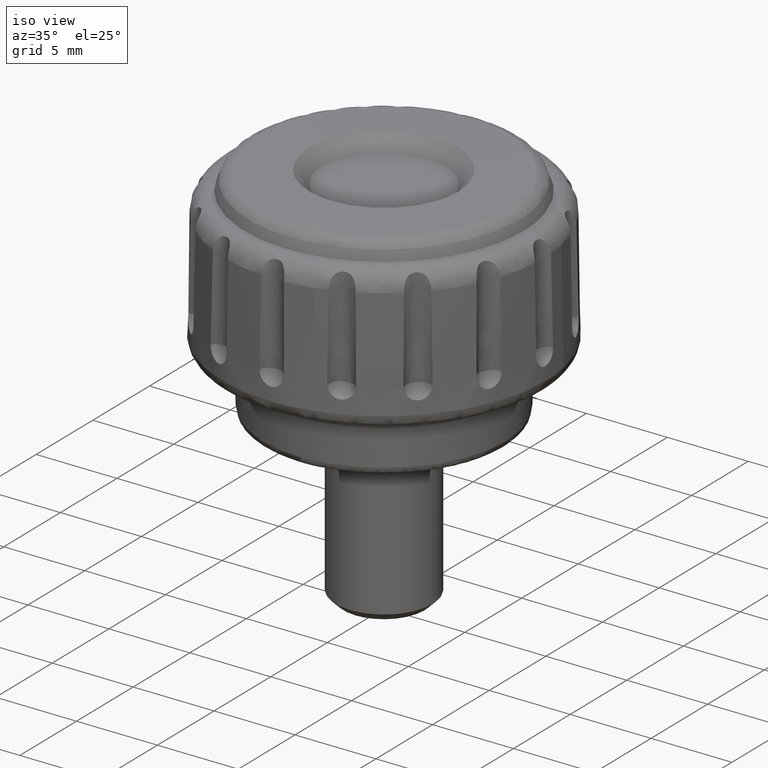
[diagram: clean part render]
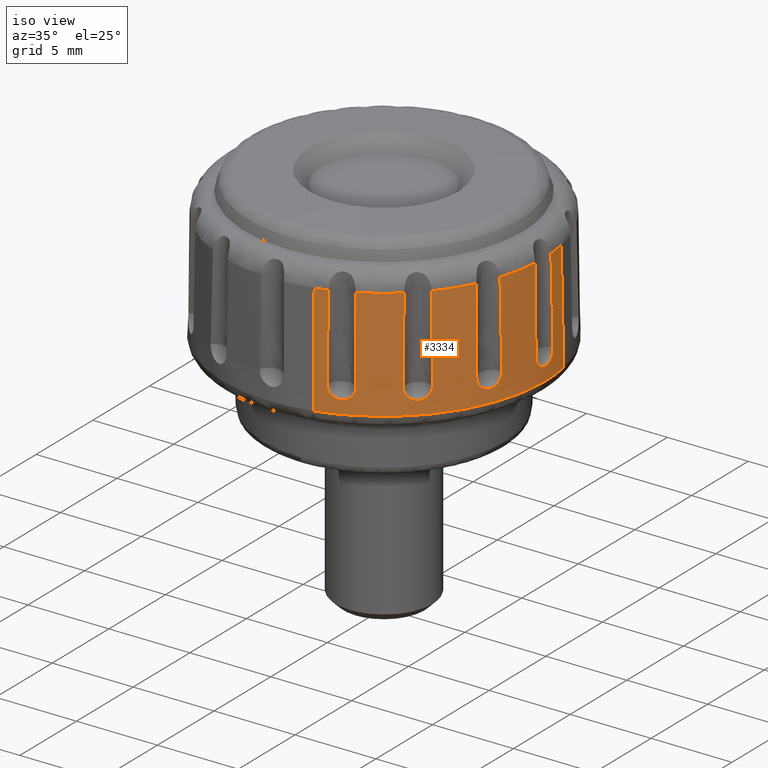
[diagram: same view with one face highlighted and labeled with its STEP entity id]
A machine part, iso view. The second image highlights one B-rep face of the part: STEP entity #3334.
In plain terms, the highlighted face is a freeform B-spline surface patch.
Its self-contained STEP definition (entity closure, byte-faithful):
#2006=CARTESIAN_POINT('',(2.407329404273356,-9.688886198825657,4.816199131637938));
#2007=VERTEX_POINT('',#2006);
#2017=CARTESIAN_POINT('',(2.374088011354312,-9.555098104094121,11.624298344610949));
#2018=VERTEX_POINT('',#2017);
#2019=CARTESIAN_POINT('',(2.374088011354312,-9.555098104094121,11.624298344610949));
#2020=CARTESIAN_POINT('',(2.407329404273356,-9.688886198825657,4.816199131637938));
#2021=QUASI_UNIFORM_CURVE('',1,(#2019,#2020),.UNSPECIFIED.,.F.,.U.);
#2022=EDGE_CURVE('',#2018,#2007,#2021,.T.);
#2902=CARTESIAN_POINT('',(9.675237683699887,1.823724062040716,11.624298279319531));
#2903=VERTEX_POINT('',#2902);
#2911=CARTESIAN_POINT('',(9.810707941262271,1.849259397551059,4.816199130975778));
#2912=VERTEX_POINT('',#2911);
#2913=CARTESIAN_POINT('',(9.675237683699887,1.823724062040716,11.624298279319531));
#2914=CARTESIAN_POINT('',(9.810707941262271,1.849259397551059,4.816199130975778));
#2915=QUASI_UNIFORM_CURVE('',1,(#2913,#2914),.UNSPECIFIED.,.F.,.U.);
#2916=EDGE_CURVE('',#2903,#2912,#2915,.T.);
#2990=CARTESIAN_POINT('',(9.671850931972292,1.823085687000226,11.794500477911379));
#2991=CARTESIAN_POINT('',(11.393488171724824,-7.310560010815339,11.794500477911381));
#2992=CARTESIAN_POINT('',(2.373256984179588,-9.551753407593877,11.794500477911381));
#2993=CARTESIAN_POINT('',(9.814179354488800,1.849913737987387,4.641741180561332));
#2994=CARTESIAN_POINT('',(11.561151756476894,-7.418140295227294,4.641741180561331));
#2995=CARTESIAN_POINT('',(2.408181211730279,-9.692314506429204,4.641741180561333));
#3003=(BOUNDED_SURFACE()B_SPLINE_SURFACE(2,1,((#2990,#2993),(#2991,#2994),(#2992,#2995)),.UNSPECIFIED.,.F.,.F.,.U.)B_SPLINE_SURFACE_WITH_KNOTS((3,3),(2,2),(0.0,15.880773930099430),(0.0,7.154225512940126),.UNSPECIFIED.)GEOMETRIC_REPRESENTATION_ITEM()RATIONAL_B_SPLINE_SURFACE(((1.0,1.0),(0.718822509939086,0.718822509939086),(0.977505800795127,0.977505800795127)))REPRESENTATION_ITEM('')SURFACE());
#3004=CARTESIAN_POINT('',(9.983473863534989,0.0,4.816198739411250));
#3005=VERTEX_POINT('',#3004);
#3006=CARTESIAN_POINT('',(9.983473863534989,0.0,4.816198739411250));
#3007=CARTESIAN_POINT('',(9.983515296119371,-0.534861144800538,4.816198761381386));
#3008=CARTESIAN_POINT('',(9.912581247310262,-1.414777323826385,4.816198797471145));
#3009=CARTESIAN_POINT('',(9.672008042475691,-2.529375552461113,4.816198843071898));
#3010=CARTESIAN_POINT('',(9.372902514281284,-3.485130479090418,4.816198882103394));
#3011=CARTESIAN_POINT('',(8.974091951240320,-4.423681660752207,4.816198920352723));
#3012=CARTESIAN_POINT('',(8.403006158416197,-5.430722995093863,4.816198961284066));
#3013=CARTESIAN_POINT('',(7.802270171767290,-6.254760388094362,4.816198994676107));
#3014=CARTESIAN_POINT('',(7.112597762145204,-7.027830244761822,4.816199025907054));
#3015=CARTESIAN_POINT('',(6.287984432173596,-7.790610407637693,4.816199056612192));
#3016=CARTESIAN_POINT('',(5.300199249487975,-8.491068815363372,4.816199084634262));
#3017=CARTESIAN_POINT('',(4.371500971930368,-8.989257857456591,4.816199104392311));
#3018=CARTESIAN_POINT('',(3.451959033985249,-9.385479786986021,4.816199119968654));
#3019=CARTESIAN_POINT('',(2.825943488203133,-9.584892449421693,4.816199127684569));
#3020=CARTESIAN_POINT('',(2.407329404273356,-9.688886198825657,4.816199131637938));
#3021=B_SPLINE_CURVE_WITH_KNOTS('',3,(#3006,#3007,#3008,#3009,#3010,#3011,#3012,#3013,#3014,#3015,#3016,#3017,#3018,#3019,#3020),.UNSPECIFIED.,.F.,.U.,(4,1,1,1,1,1,1,1,1,1,1,1,4),(5.225735E-009,1.604576799957945,2.639792003374524,3.416203565857330,4.606701347725675,5.693672545457867,6.884163303086591,7.660571801180874,8.799309025454859,10.248611014764791,11.283826456759201,11.956716306268660,13.250728404002279),.UNSPECIFIED.);
#3022=EDGE_CURVE('',#3005,#2007,#3021,.T.);
#3023=ORIENTED_EDGE('',*,*,#3022,.F.);
#3024=CARTESIAN_POINT('',(9.810707941262271,1.849259397551059,4.816199130975778));
#3025=CARTESIAN_POINT('',(9.925597363755829,1.239993066130832,4.816199002112219));
#3026=CARTESIAN_POINT('',(9.983511374251151,0.620003349264521,4.816198870834796));
#3027=CARTESIAN_POINT('',(9.983473863534989,0.0,4.816198739411250));
#3028=B_SPLINE_CURVE_WITH_KNOTS('',3,(#3024,#3025,#3026,#3027),.UNSPECIFIED.,.F.,.U.,(4,4),(8.496004E-011,1.860003678391336),.UNSPECIFIED.);
#3029=EDGE_CURVE('',#2912,#3005,#3028,.T.);
#3030=ORIENTED_EDGE('',*,*,#3029,.F.);
#3031=ORIENTED_EDGE('',*,*,#2916,.F.);
#3032=CARTESIAN_POINT('',(9.820402103625751,0.704199067433813,11.624297996118401));
#3033=VERTEX_POINT('',#3032);
#3034=CARTESIAN_POINT('',(9.675237683699887,1.823724062040716,11.624298279319531));
#3035=CARTESIAN_POINT('',(9.744982771600377,1.453734698667584,11.624298185333760));
#3036=CARTESIAN_POINT('',(9.793480030928507,1.079741048237048,11.624298090726169));
#3037=CARTESIAN_POINT('',(9.820402103625751,0.704199067433813,11.624297996118401));
#3038=B_SPLINE_CURVE_WITH_KNOTS('',3,(#3034,#3035,#3036,#3037),.UNSPECIFIED.,.F.,.U.,(4,4),(4.641199E-011,1.129517131496656),.UNSPECIFIED.);
#3039=EDGE_CURVE('',#2903,#3033,#3038,.T.);
#3040=ORIENTED_EDGE('',*,*,#3039,.T.);
#3041=CARTESIAN_POINT('',(9.923061094134269,0.750531941851973,6.399994000000130));
#3042=VERTEX_POINT('',#3041);
#3043=CARTESIAN_POINT('',(9.923061094134269,0.750531941851973,6.399994000000130));
#3044=CARTESIAN_POINT('',(9.820402103625751,0.704199067433813,11.624297996118401));
#3045=QUASI_UNIFORM_CURVE('',1,(#3043,#3044),.UNSPECIFIED.,.F.,.U.);
#3046=EDGE_CURVE('',#3042,#3033,#3045,.T.);
#3047=ORIENTED_EDGE('',*,*,#3046,.F.);
#3048=CARTESIAN_POINT('',(9.923061094134269,-0.750531941851978,6.399994000000119));
#3049=VERTEX_POINT('',#3048);
#3050=CARTESIAN_POINT('',(9.923061094134273,-0.750531941851975,6.399994000000119));
#3051=CARTESIAN_POINT('',(9.924039569107070,-0.750893005139187,6.350464187155513));
#3052=CARTESIAN_POINT('',(9.925406288761224,-0.746380247962434,6.300137076394410));
#3053=CARTESIAN_POINT('',(9.928752772783989,-0.727969335153722,6.202656078881447));
#3054=CARTESIAN_POINT('',(9.930730978695340,-0.714171973205259,6.155207373734668));
#3055=CARTESIAN_POINT('',(9.934073446908407,-0.686510688892551,6.085990254707659));
#3056=CARTESIAN_POINT('',(9.935257058869562,-0.676052288637026,6.063125774468122));
#3057=CARTESIAN_POINT('',(9.937688345489960,-0.653122900156033,6.018891842076958));
#3058=CARTESIAN_POINT('',(9.938937010206256,-0.640652380542665,5.997481490238004));
#3059=CARTESIAN_POINT('',(9.942745120267826,-0.600286054802584,5.935324032145839));
#3060=CARTESIAN_POINT('',(9.945367673978698,-0.569464941454376,5.896629950310925));
#3061=CARTESIAN_POINT('',(9.950572849838045,-0.499638828529672,5.824971765445694));
#3062=CARTESIAN_POINT('',(9.953080643261531,-0.461581185260978,5.793023403231108));
#3063=CARTESIAN_POINT('',(9.956513622647623,-0.400433364001780,5.751169633211704));
#3064=CARTESIAN_POINT('',(9.957605123210177,-0.379342389099683,5.738210086921245));
#3065=CARTESIAN_POINT('',(9.959655644315532,-0.335709225770623,5.714320733999897));
#3066=CARTESIAN_POINT('',(9.960618388603958,-0.313048632109812,5.703350525472327));
#3067=CARTESIAN_POINT('',(9.963212046681667,-0.244255085841761,5.674219416174547));
#3068=CARTESIAN_POINT('',(9.964567211775915,-0.197022589761305,5.659583497571507));
#3069=CARTESIAN_POINT('',(9.966415695278773,-0.099842942263010,5.639780862396210));
#3070=CARTESIAN_POINT('',(9.966900365674720,-0.049499739407052,5.634706455735643));
#3071=CARTESIAN_POINT('',(9.966899592143871,0.049622077540886,5.634714614161477));
#3072=CARTESIAN_POINT('',(9.966430161631333,0.098876908430931,5.639627196032323));
#3073=CARTESIAN_POINT('',(9.965039575302054,0.172290023689601,5.654522467296220));
#3074=CARTESIAN_POINT('',(9.964460525858343,0.196646833368533,5.660762431298142));
#3075=CARTESIAN_POINT('',(9.963112552715860,0.244107029538936,5.675488516089949));
#3076=CARTESIAN_POINT('',(9.961570028351222,0.290595530089054,5.692510750013237));
#3077=CARTESIAN_POINT('',(9.959679130946908,0.335173252072258,5.714051232834592));
#3078=CARTESIAN_POINT('',(9.957633038244623,0.378783686156023,5.737880841484805));
#3079=CARTESIAN_POINT('',(9.956525578161861,0.400219056210582,5.751024162211154));
#3080=CARTESIAN_POINT('',(9.953060920790056,0.461935192306144,5.793263280225503));
#3081=CARTESIAN_POINT('',(9.950563197898587,0.499749274649489,5.825115827374981));
#3082=CARTESIAN_POINT('',(9.945411170127629,0.568900359262002,5.896020037971128));
#3083=CARTESIAN_POINT('',(9.942734207406987,0.600415202354290,5.935484058949170));
#3084=CARTESIAN_POINT('',(9.937645114625893,0.654333036513363,6.018586530354967));
#3085=CARTESIAN_POINT('',(9.935210726446304,0.677085728087913,6.062471596342235));
#3086=CARTESIAN_POINT('',(9.931858601026073,0.704846613647303,6.131840035817982));
#3087=CARTESIAN_POINT('',(9.930789166999263,0.713037333858679,6.155625104535411));
#3088=CARTESIAN_POINT('',(9.928812970622063,0.726920838070620,6.203381406306209));
#3089=CARTESIAN_POINT('',(9.927900082185929,0.732667801176263,6.227469207731978));
#3090=CARTESIAN_POINT('',(9.925400744031217,0.746395926020714,6.300349600802886));
#3091=CARTESIAN_POINT('',(9.924049945071845,0.750896833934070,6.349938962078084));
#3092=CARTESIAN_POINT('',(9.923061094134274,0.750531941851993,6.399994000000134));
#3093=B_SPLINE_CURVE_WITH_KNOTS('',3,(#3050,#3051,#3052,#3053,#3054,#3055,#3056,#3057,#3058,#3059,#3060,#3061,#3062,#3063,#3064,#3065,#3066,#3067,#3068,#3069,#3070,#3071,#3072,#3073,#3074,#3075,#3076,#3077,#3078,#3079,#3080,#3081,#3082,#3083,#3084,#3085,#3086,#3087,#3088,#3089,#3090,#3091,#3092),.UNSPECIFIED.,.F.,.U.,(4,2,2,2,2,2,2,2,2,2,2,2,2,1,2,2,2,2,2,2,2,4),(0.0,0.062500000000001,0.125000000000001,0.156250000000001,0.187500000000001,0.250000000000001,0.312500000000001,0.343750000000002,0.375000000000002,0.437500000000002,0.500000000000002,0.562500000000001,0.593750000000001,0.625000000000001,0.656250000000001,0.687500000000001,0.750000000000001,0.812500000000001,0.875000000000001,0.906250000000000,0.937500000000000,1.0),.UNSPECIFIED.);
#3094=EDGE_CURVE('',#3049,#3042,#3093,.T.);
#3095=ORIENTED_EDGE('',*,*,#3094,.F.);
#3096=CARTESIAN_POINT('',(9.820402103625751,-0.704199067433811,11.624297996118401));
#3097=VERTEX_POINT('',#3096);
#3098=CARTESIAN_POINT('',(9.820402103625751,-0.704199067433811,11.624297996118401));
#3099=CARTESIAN_POINT('',(9.923061094134269,-0.750531941851978,6.399994000000119));
#3100=QUASI_UNIFORM_CURVE('',1,(#3098,#3099),.UNSPECIFIED.,.F.,.U.);
#3101=EDGE_CURVE('',#3097,#3049,#3100,.T.);
#3102=ORIENTED_EDGE('',*,*,#3101,.F.);
#3103=CARTESIAN_POINT('',(9.342353820764480,-3.107510079005220,11.624297996118401));
#3104=VERTEX_POINT('',#3103);
#3105=CARTESIAN_POINT('',(9.820402103625751,-0.704199067433811,11.624297996118401));
#3106=CARTESIAN_POINT('',(9.779276412835120,-1.278537462830015,11.624297996118360));
#3107=CARTESIAN_POINT('',(9.648780559490408,-2.090183499443139,11.624297996118431));
#3108=CARTESIAN_POINT('',(9.419085398249266,-2.876819719017532,11.624297996118409));
#3109=CARTESIAN_POINT('',(9.342353820764480,-3.107510079005220,11.624297996118401));
#3110=B_SPLINE_CURVE_WITH_KNOTS('',3,(#3105,#3106,#3107,#3108,#3109),.UNSPECIFIED.,.F.,.U.,(4,1,4),(2.258269E-010,1.727412764483231,2.456764972439028),.UNSPECIFIED.);
#3111=EDGE_CURVE('',#3097,#3104,#3110,.T.);
#3112=ORIENTED_EDGE('',*,*,#3111,.T.);
#3113=CARTESIAN_POINT('',(9.454929184337260,-3.103989979498800,6.399994000000130));
#3114=VERTEX_POINT('',#3113);
#3115=CARTESIAN_POINT('',(9.454929184337260,-3.103989979498800,6.399994000000130));
#3116=CARTESIAN_POINT('',(9.342353820764480,-3.107510079005220,11.624297996118401));
#3117=QUASI_UNIFORM_CURVE('',1,(#3115,#3116),.UNSPECIFIED.,.F.,.U.);
#3118=EDGE_CURVE('',#3114,#3104,#3117,.T.);
#3119=ORIENTED_EDGE('',*,*,#3118,.F.);
#3120=CARTESIAN_POINT('',(8.880496905122159,-4.490792178644785,6.399994000000119));
#3121=VERTEX_POINT('',#3120);
#3122=CARTESIAN_POINT('',(8.880496905122159,-4.490792178644785,6.399994000000119));
#3123=CARTESIAN_POINT('',(8.881267879851727,-4.491504969443222,6.350130806329656));
#3124=CARTESIAN_POINT('',(8.884200562070349,-4.487923959817107,6.300859588249299));
#3125=CARTESIAN_POINT('',(8.894281014321631,-4.472303977734542,6.203480066521325));
#3126=CARTESIAN_POINT('',(8.901543676046018,-4.460053943054771,6.154951490962036));
#3127=CARTESIAN_POINT('',(8.919732652219709,-4.427758137475997,6.062919199556132));
#3128=CARTESIAN_POINT('',(8.930660162314275,-4.407729355976033,6.019028312063126));
#3129=CARTESIAN_POINT('',(8.949728468179023,-4.371707269653022,5.956431228551504));
#3130=CARTESIAN_POINT('',(8.956571172517432,-4.358622349739371,5.936019887672411));
#3131=CARTESIAN_POINT('',(8.970870372862754,-4.330927064150659,5.897129574759851));
#3132=CARTESIAN_POINT('',(8.978345952730688,-4.316282240683870,5.878568542024726));
#3133=CARTESIAN_POINT('',(9.001696382663624,-4.269983903714068,5.825487345457099));
#3134=CARTESIAN_POINT('',(9.018488812668592,-4.235985382187831,5.793538530082611));
#3135=CARTESIAN_POINT('',(9.054436556684438,-4.161339892675657,5.736892135628012));
#3136=CARTESIAN_POINT('',(9.072978794846478,-4.121961284174106,5.713156616871856));
#3137=CARTESIAN_POINT('',(9.101491406381429,-4.059864400971000,5.684186252852564));
#3138=CARTESIAN_POINT('',(9.111113548988401,-4.038657072716307,5.675643229450039));
#3139=CARTESIAN_POINT('',(9.130583768445851,-3.995191411780074,5.660843437709039));
#3140=CARTESIAN_POINT('',(9.140456976522257,-3.972872132178420,5.654588321599382));
#3141=CARTESIAN_POINT('',(9.169733325037939,-3.905822200670396,5.639709769344134));
#3142=CARTESIAN_POINT('',(9.189006996841343,-3.860530897285795,5.634745085852623));
#3143=CARTESIAN_POINT('',(9.217523577540190,-3.791698556709894,5.634693522687190));
#3144=CARTESIAN_POINT('',(9.227010112312012,-3.768488526332703,5.635932220730966));
#3145=CARTESIAN_POINT('',(9.245619920339930,-3.722326677751497,5.640931268867250));
#3146=CARTESIAN_POINT('',(9.254697894992818,-3.699490967006654,5.644664576602924));
#3147=CARTESIAN_POINT('',(9.281282572195837,-3.631701794565817,5.659455110059620));
#3148=CARTESIAN_POINT('',(9.298143892063806,-3.587458286329545,5.674067749559086));
#3149=CARTESIAN_POINT('',(9.330209121720637,-3.500970153785854,5.713074229182642));
#3150=CARTESIAN_POINT('',(9.345005739604472,-3.459818138486670,5.737021568458336));
#3151=CARTESIAN_POINT('',(9.365260940908311,-3.401942814930816,5.778885101711847));
#3152=CARTESIAN_POINT('',(9.371704322808805,-3.383251435446601,5.793858443414423));
#3153=CARTESIAN_POINT('',(9.383988580161574,-3.347098883781868,5.825877864842361));
#3154=CARTESIAN_POINT('',(9.389849180295249,-3.329575509598492,5.843005514270534));
#3155=CARTESIAN_POINT('',(9.406194360662139,-3.279968014337381,5.896463251065669));
#3156=CARTESIAN_POINT('',(9.415571355028471,-3.250482672980456,5.935095011725163));
#3157=CARTESIAN_POINT('',(9.431535426942981,-3.198628143939037,6.018245142795571));
#3158=CARTESIAN_POINT('',(9.438123844900050,-3.176227094947659,6.063096429880022));
#3159=CARTESIAN_POINT('',(9.448083609832519,-3.140578965421760,6.155050418803309));
#3160=CARTESIAN_POINT('',(9.451552919774965,-3.127021529002516,6.202545894213224));
#3161=CARTESIAN_POINT('',(9.454530584125363,-3.113236968568680,6.276112672392811));
#3162=CARTESIAN_POINT('',(9.455142987979968,-3.109760289876156,6.301015317417392));
#3163=CARTESIAN_POINT('',(9.455599117413319,-3.105161486246883,6.350524119286892));
#3164=CARTESIAN_POINT('',(9.455449501885211,-3.104010383073835,6.375265470868564));
#3165=CARTESIAN_POINT('',(9.454929184337258,-3.103989979498798,6.399994000000132));
#3166=B_SPLINE_CURVE_WITH_KNOTS('',3,(#3122,#3123,#3124,#3125,#3126,#3127,#3128,#3129,#3130,#3131,#3132,#3133,#3134,#3135,#3136,#3137,#3138,#3139,#3140,#3141,#3142,#3143,#3144,#3145,#3146,#3147,#3148,#3149,#3150,#3151,#3152,#3153,#3154,#3155,#3156,#3157,#3158,#3159,#3160,#3161,#3162,#3163,#3164,#3165),.UNSPECIFIED.,.F.,.U.,(4,2,2,2,2,2,2,2,2,2,2,2,2,2,2,2,2,2,2,2,2,4),(0.0,0.062499999999998,0.124999999999996,0.187499999999994,0.218749999999994,0.249999999999993,0.312499999999993,0.374999999999992,0.406249999999992,0.437499999999991,0.499999999999991,0.531249999999992,0.562499999999992,0.624999999999993,0.687499999999994,0.718749999999994,0.749999999999995,0.812499999999996,0.874999999999998,0.937499999999999,0.968750000000000,1.0),.UNSPECIFIED.);
#3167=EDGE_CURVE('',#3121,#3114,#3166,.T.);
#3168=ORIENTED_EDGE('',*,*,#3167,.F.);
#3169=CARTESIAN_POINT('',(8.803383188376751,-4.408700289436485,11.624297996118401));
#3170=VERTEX_POINT('',#3169);
#3171=CARTESIAN_POINT('',(8.803383188376751,-4.408700289436485,11.624297996118401));
#3172=CARTESIAN_POINT('',(8.880496905122159,-4.490792178644785,6.399994000000119));
#3173=QUASI_UNIFORM_CURVE('',1,(#3171,#3172),.UNSPECIFIED.,.F.,.U.);
#3174=EDGE_CURVE('',#3170,#3121,#3173,.T.);
#3175=ORIENTED_EDGE('',*,*,#3174,.F.);
#3176=CARTESIAN_POINT('',(7.442016857340100,-6.446128985564720,11.624297996118401));
#3177=VERTEX_POINT('',#3176);
#3178=CARTESIAN_POINT('',(8.803383188376751,-4.408700289436485,11.624297996118401));
#3179=CARTESIAN_POINT('',(8.642957861077203,-4.729054934144330,11.624297996118420));
#3180=CARTESIAN_POINT('',(8.236245203555107,-5.441247875914570,11.624297996118379));
#3181=CARTESIAN_POINT('',(7.743624915976811,-6.097954613414086,11.624297996118409));
#3182=CARTESIAN_POINT('',(7.442016857340100,-6.446128985564720,11.624297996118401));
#3183=B_SPLINE_CURVE_WITH_KNOTS('',3,(#3178,#3179,#3180,#3181,#3182),.UNSPECIFIED.,.F.,.U.,(4,1,4),(2.257772E-010,1.074835795960791,2.456764972439023),.UNSPECIFIED.);
#3184=EDGE_CURVE('',#3170,#3177,#3183,.T.);
#3185=ORIENTED_EDGE('',*,*,#3184,.T.);
#3186=CARTESIAN_POINT('',(7.547370015371381,-6.485957564210110,6.399994000000130));
#3187=VERTEX_POINT('',#3186);
#3188=CARTESIAN_POINT('',(7.547370015371381,-6.485957564210110,6.399994000000130));
#3189=CARTESIAN_POINT('',(7.442016857340100,-6.446128985564720,11.624297996118401));
#3190=QUASI_UNIFORM_CURVE('',1,(#3188,#3189),.UNSPECIFIED.,.F.,.U.);
#3191=EDGE_CURVE('',#3187,#3177,#3190,.T.);
#3192=ORIENTED_EDGE('',*,*,#3191,.F.);
#3193=CARTESIAN_POINT('',(6.485957564210100,-7.547370015371390,6.399994000000119));
#3194=VERTEX_POINT('',#3193);
#3195=CARTESIAN_POINT('',(6.485957564210106,-7.547370015371386,6.399994000000119));
#3196=CARTESIAN_POINT('',(6.486399317815217,-7.548328445328833,6.349876783518329));
#3197=CARTESIAN_POINT('',(6.490531297389591,-7.546102944687202,6.300400586827006));
#3198=CARTESIAN_POINT('',(6.502000747979865,-7.538167246604584,6.227526168672770));
#3199=CARTESIAN_POINT('',(6.506708804979957,-7.534750128258783,6.203435842984990));
#3200=CARTESIAN_POINT('',(6.517924029277515,-7.526330160936463,6.155665730897812));
#3201=CARTESIAN_POINT('',(6.524472786459864,-7.521294066550099,6.131875573414222));
#3202=CARTESIAN_POINT('',(6.546458862174635,-7.504045965520128,6.062539348010709));
#3203=CARTESIAN_POINT('',(6.564256277109277,-7.489689269705747,6.018673769142801));
#3204=CARTESIAN_POINT('',(6.605948819073810,-7.455189592481611,5.935605879104807));
#3205=CARTESIAN_POINT('',(6.630124121445182,-7.434800629650636,5.896128468842559));
#3206=CARTESIAN_POINT('',(6.682644448207079,-7.389565339348137,5.825223930320389));
#3207=CARTESIAN_POINT('',(6.711119855576686,-7.364619216386367,5.793395264827479));
#3208=CARTESIAN_POINT('',(6.757120889992889,-7.323511451079327,5.751203885263210));
#3209=CARTESIAN_POINT('',(6.773073296813012,-7.309127806752133,5.738035747969654));
#3210=CARTESIAN_POINT('',(6.805388379643961,-7.279711142227097,5.714162923661784));
#3211=CARTESIAN_POINT('',(6.821821700482825,-7.264616012897710,5.703382554391451));
#3212=CARTESIAN_POINT('',(6.871912960822431,-7.218167514550808,5.674448661117638));
#3213=CARTESIAN_POINT('',(6.906482389208629,-7.185537305801348,5.659631579871640));
#3214=CARTESIAN_POINT('',(6.977199794188239,-7.117456723186261,5.639657985836883));
#3215=CARTESIAN_POINT('',(7.012388476532443,-7.082933289993230,5.634735581876673));
#3216=CARTESIAN_POINT('',(7.064902264945141,-7.030424520793630,5.634698149326878));
#3217=CARTESIAN_POINT('',(7.082362143099184,-7.012800585112220,5.635919215769391));
#3218=CARTESIAN_POINT('',(7.117191860394457,-6.977305769949384,5.640898465959917));
#3219=CARTESIAN_POINT('',(7.134507598738666,-6.959487846148398,5.644665683561749));
#3220=CARTESIAN_POINT('',(7.185166466098463,-6.906868939086648,5.659512263306142));
#3221=CARTESIAN_POINT('',(7.217614013395809,-6.872505123088633,5.674146292456719));
#3222=CARTESIAN_POINT('',(7.264363709636135,-6.822096124602442,5.703204536373693));
#3223=CARTESIAN_POINT('',(7.279703846661863,-6.805396523367493,5.714155726216641));
#3224=CARTESIAN_POINT('',(7.309173291219822,-6.773023201274035,5.738073938925070));
#3225=CARTESIAN_POINT('',(7.323338529101664,-6.757312632243477,5.751046037506145));
#3226=CARTESIAN_POINT('',(7.364196672038057,-6.711596175307999,5.792922865862050));
#3227=CARTESIAN_POINT('',(7.389293128592700,-6.682960308801945,5.824800066395859));
#3228=CARTESIAN_POINT('',(7.435047129229997,-6.629838112644250,5.896512033091637));
#3229=CARTESIAN_POINT('',(7.455006198994851,-6.606167167950428,5.935232089594311));
#3230=CARTESIAN_POINT('',(7.480876870988708,-6.574907593554134,5.997422040507130));
#3231=CARTESIAN_POINT('',(7.488817018359743,-6.565200607556299,6.018842159211760));
#3232=CARTESIAN_POINT('',(7.503319093766736,-6.547258632130838,6.063092653683331));
#3233=CARTESIAN_POINT('',(7.509876254915648,-6.539027963198572,6.085950884999010));
#3234=CARTESIAN_POINT('',(7.527074131688236,-6.517103059203041,6.155163170718025));
#3235=CARTESIAN_POINT('',(7.535437317077860,-6.505940956825918,6.202625814843629));
#3236=CARTESIAN_POINT('',(7.543431747241594,-6.494394616949090,6.275787306607219));
#3237=CARTESIAN_POINT('',(7.545336495041253,-6.491409279809409,6.300620413279352));
#3238=CARTESIAN_POINT('',(7.547541103705854,-6.487299204542928,6.350412320390880));
#3239=CARTESIAN_POINT('',(7.547843452842423,-6.486175778079570,6.375237503145963));
#3240=CARTESIAN_POINT('',(7.547370015371386,-6.485957564210106,6.399994000000130));
#3241=B_SPLINE_CURVE_WITH_KNOTS('',3,(#3195,#3196,#3197,#3198,#3199,#3200,#3201,#3202,#3203,#3204,#3205,#3206,#3207,#3208,#3209,#3210,#3211,#3212,#3213,#3214,#3215,#3216,#3217,#3218,#3219,#3220,#3221,#3222,#3223,#3224,#3225,#3226,#3227,#3228,#3229,#3230,#3231,#3232,#3233,#3234,#3235,#3236,#3237,#3238,#3239,#3240),.UNSPECIFIED.,.F.,.U.,(4,2,2,2,2,2,2,2,2,2,2,2,2,2,2,2,2,2,2,2,2,2,4),(0.0,0.062499999999998,0.093749999999997,0.124999999999996,0.187499999999995,0.249999999999995,0.312499999999994,0.343749999999993,0.374999999999993,0.437499999999993,0.499999999999992,0.531249999999992,0.562499999999992,0.624999999999993,0.656249999999993,0.687499999999993,0.749999999999995,0.812499999999997,0.843749999999998,0.874999999999998,0.937499999999999,0.968750000000000,1.0),.UNSPECIFIED.);
#3242=EDGE_CURVE('',#3194,#3187,#3241,.T.);
#3243=ORIENTED_EDGE('',*,*,#3242,.F.);
#3244=CARTESIAN_POINT('',(6.446128985564711,-7.442016857340100,11.624297996118401));
#3245=VERTEX_POINT('',#3244);
#3246=CARTESIAN_POINT('',(6.446128985564711,-7.442016857340100,11.624297996118401));
#3247=CARTESIAN_POINT('',(6.485957564210100,-7.547370015371390,6.399994000000119));
#3248=QUASI_UNIFORM_CURVE('',1,(#3246,#3247),.UNSPECIFIED.,.F.,.U.);
#3249=EDGE_CURVE('',#3245,#3194,#3248,.T.);
#3250=ORIENTED_EDGE('',*,*,#3249,.F.);
#3251=CARTESIAN_POINT('',(4.408700289436481,-8.803383188376751,11.624297996118401));
#3252=VERTEX_POINT('',#3251);
#3253=CARTESIAN_POINT('',(6.446128985564711,-7.442016857340100,11.624297996118401));
#3254=CARTESIAN_POINT('',(6.059274764296368,-7.777146605110149,11.624297996118409));
#3255=CARTESIAN_POINT('',(5.398355395954674,-8.264895492936745,11.624297996118379));
#3256=CARTESIAN_POINT('',(4.683287406624176,-8.665872238439851,11.624297996118409));
#3257=CARTESIAN_POINT('',(4.408700289436481,-8.803383188376751,11.624297996118401));
#3258=B_SPLINE_CURVE_WITH_KNOTS('',3,(#3253,#3254,#3255,#3256,#3257),.UNSPECIFIED.,.F.,.U.,(4,1,4),(2.258926E-010,1.535478104227918,2.456764972439020),.UNSPECIFIED.);
#3259=EDGE_CURVE('',#3245,#3252,#3258,.T.);
#3260=ORIENTED_EDGE('',*,*,#3259,.T.);
#3261=CARTESIAN_POINT('',(4.490792178644769,-8.880496905122159,6.399994000000130));
#3262=VERTEX_POINT('',#3261);
#3263=CARTESIAN_POINT('',(4.490792178644769,-8.880496905122159,6.399994000000130));
#3264=CARTESIAN_POINT('',(4.408700289436481,-8.803383188376751,11.624297996118401));
#3265=QUASI_UNIFORM_CURVE('',1,(#3263,#3264),.UNSPECIFIED.,.F.,.U.);
#3266=EDGE_CURVE('',#3262,#3252,#3265,.T.);
#3267=ORIENTED_EDGE('',*,*,#3266,.F.);
#3268=CARTESIAN_POINT('',(3.103989979498790,-9.454929184337260,6.399994000000119));
#3269=VERTEX_POINT('',#3268);
#3270=CARTESIAN_POINT('',(3.103989979498790,-9.454929184337260,6.399994000000119));
#3271=CARTESIAN_POINT('',(3.104031035325033,-9.455976161089083,6.350235549277244));
#3272=CARTESIAN_POINT('',(3.108617932138481,-9.455523345041778,6.300993423905820));
#3273=CARTESIAN_POINT('',(3.126794302252530,-9.451606952995997,6.203532294302640));
#3274=CARTESIAN_POINT('',(3.140589390615998,-9.448080741848949,6.155021783165159));
#3275=CARTESIAN_POINT('',(3.176224049269262,-9.438124651104385,6.063106030492998));
#3276=CARTESIAN_POINT('',(3.198096300515330,-9.431695549875194,6.019201850450495));
#3277=CARTESIAN_POINT('',(3.237100781442222,-9.419692898224580,5.956502646890250));
#3278=CARTESIAN_POINT('',(3.251180735227898,-9.415282456073053,5.936106600699192));
#3279=CARTESIAN_POINT('',(3.280809614927731,-9.405831619774730,5.897286276117376));
#3280=CARTESIAN_POINT('',(3.296425956693503,-9.400770902451258,5.878742689302978));
#3281=CARTESIAN_POINT('',(3.345632475879850,-9.384560011372344,5.825673086079193));
#3282=CARTESIAN_POINT('',(3.381735603583125,-9.372329555107875,5.793553716427620));
#3283=CARTESIAN_POINT('',(3.459720233383726,-9.345043463269652,5.737041125785827));
#3284=CARTESIAN_POINT('',(3.500616802863979,-9.330333901499037,5.713306733274104));
#3285=CARTESIAN_POINT('',(3.564692309837960,-9.306587330042428,5.684299840353122));
#3286=CARTESIAN_POINT('',(3.586509453268876,-9.298389888745467,5.675738067740955));
#3287=CARTESIAN_POINT('',(3.631083142684291,-9.281396968732462,5.660897186961646));
#3288=CARTESIAN_POINT('',(3.653793012951873,-9.272617518024074,5.654651561576400));
#3289=CARTESIAN_POINT('',(3.721782289309307,-9.245959141670889,5.639768614272271));
#3290=CARTESIAN_POINT('',(3.767419859271780,-9.227572357334612,5.634769390314332));
#3291=CARTESIAN_POINT('',(3.836332802191204,-9.199036663485609,5.634681870907951));
#3292=CARTESIAN_POINT('',(3.859513233076247,-9.189308059083190,5.635916508151633));
#3293=CARTESIAN_POINT('',(3.905213560652585,-9.169870635591856,5.640882839833939));
#3294=CARTESIAN_POINT('',(3.927748303027734,-9.160157562545654,5.644596228281045));
#3295=CARTESIAN_POINT('',(3.994435427238525,-9.131045728377048,5.659332034153264));
#3296=CARTESIAN_POINT('',(4.037678742698937,-9.111671552366669,5.673914225809690));
#3297=CARTESIAN_POINT('',(4.121694375604552,-9.073107905863672,5.712955356706271));
#3298=CARTESIAN_POINT('',(4.161048928827052,-9.054570937043524,5.736755450291987));
#3299=CARTESIAN_POINT('',(4.216327390424711,-9.027958483089883,5.778579855854190));
#3300=CARTESIAN_POINT('',(4.234123872092523,-9.019287835003850,5.793550155269449));
#3301=CARTESIAN_POINT('',(4.268441927729372,-9.002379280848315,5.825592430284931));
#3302=CARTESIAN_POINT('',(4.284965289573163,-8.994139164226004,5.842691254231506));
#3303=CARTESIAN_POINT('',(4.331551691497866,-8.970647603809397,5.896020557773628));
#3304=CARTESIAN_POINT('',(4.359054559375174,-8.956420314308346,5.934606786630520));
#3305=CARTESIAN_POINT('',(4.395095696330325,-8.937350616160622,5.996996099077449));
#3306=CARTESIAN_POINT('',(4.406285361681953,-8.931347034935479,6.018666791625031));
#3307=CARTESIAN_POINT('',(4.426585414358661,-8.920301793158648,6.062971084309522));
#3308=CARTESIAN_POINT('',(4.435678472877595,-8.915270761596545,6.085532642575386));
#3309=CARTESIAN_POINT('',(4.459893748994221,-8.901636189868963,6.154409979734034));
#3310=CARTESIAN_POINT('',(4.471981961257204,-8.894478742613837,6.201907099843917));
#3311=CARTESIAN_POINT('',(4.487877952032667,-8.884240108715888,6.300148171918350));
#3312=CARTESIAN_POINT('',(4.491506522234972,-8.881269559396912,6.350022180894552));
#3313=CARTESIAN_POINT('',(4.490792178644769,-8.880496905122159,6.399994000000130));
#3314=B_SPLINE_CURVE_WITH_KNOTS('',3,(#3270,#3271,#3272,#3273,#3274,#3275,#3276,#3277,#3278,#3279,#3280,#3281,#3282,#3283,#3284,#3285,#3286,#3287,#3288,#3289,#3290,#3291,#3292,#3293,#3294,#3295,#3296,#3297,#3298,#3299,#3300,#3301,#3302,#3303,#3304,#3305,#3306,#3307,#3308,#3309,#3310,#3311,#3312,#3313),.UNSPECIFIED.,.F.,.U.,(4,2,2,2,2,2,2,2,2,2,2,2,2,2,2,2,2,2,2,2,2,4),(0.0,0.062500000000000,0.125000000000000,0.187500000000000,0.218750000000001,0.250000000000001,0.312500000000000,0.375000000000000,0.406250000000000,0.437500000000000,0.500000000000000,0.531249999999999,0.562499999999999,0.624999999999999,0.687499999999999,0.718749999999999,0.749999999999999,0.812500000000000,0.843750000000000,0.875000000000000,0.937500000000000,1.0),.UNSPECIFIED.);
#3315=EDGE_CURVE('',#3269,#3262,#3314,.T.);
#3316=ORIENTED_EDGE('',*,*,#3315,.F.);
#3317=CARTESIAN_POINT('',(3.107510079005215,-9.342353820764480,11.624297996118401));
#3318=VERTEX_POINT('',#3317);
#3319=CARTESIAN_POINT('',(3.107510079005215,-9.342353820764480,11.624297996118401));
#3320=CARTESIAN_POINT('',(3.103989979498790,-9.454929184337260,6.399994000000119));
#3321=QUASI_UNIFORM_CURVE('',1,(#3319,#3320),.UNSPECIFIED.,.F.,.U.);
#3322=EDGE_CURVE('',#3318,#3269,#3321,.T.);
#3323=ORIENTED_EDGE('',*,*,#3322,.F.);
#3324=CARTESIAN_POINT('',(3.107510079005215,-9.342353820764480,11.624297996118401));
#3325=CARTESIAN_POINT('',(2.865909856333876,-9.422717934911100,11.624298112399289));
#3326=CARTESIAN_POINT('',(2.621190549343878,-9.493703184925714,11.624298228679921));
#3327=CARTESIAN_POINT('',(2.374088011354312,-9.555098104094121,11.624298344610949));
#3328=B_SPLINE_CURVE_WITH_KNOTS('',3,(#3324,#3325,#3326,#3327),.UNSPECIFIED.,.F.,.U.,(4,4),(1.595524E-011,0.763846711628358),.UNSPECIFIED.);
#3329=EDGE_CURVE('',#3318,#2018,#3328,.T.);
#3330=ORIENTED_EDGE('',*,*,#3329,.T.);
#3331=ORIENTED_EDGE('',*,*,#2022,.T.);
#3332=EDGE_LOOP('',(#3023,#3030,#3031,#3040,#3047,#3095,#3102,#3112,#3119,#3168,#3175,#3185,#3192,#3243,#3250,#3260,#3267,#3316,#3323,#3330,#3331));
#3333=FACE_OUTER_BOUND('',#3332,.T.);
#3334=ADVANCED_FACE('',(#3333),#3003,.T.);